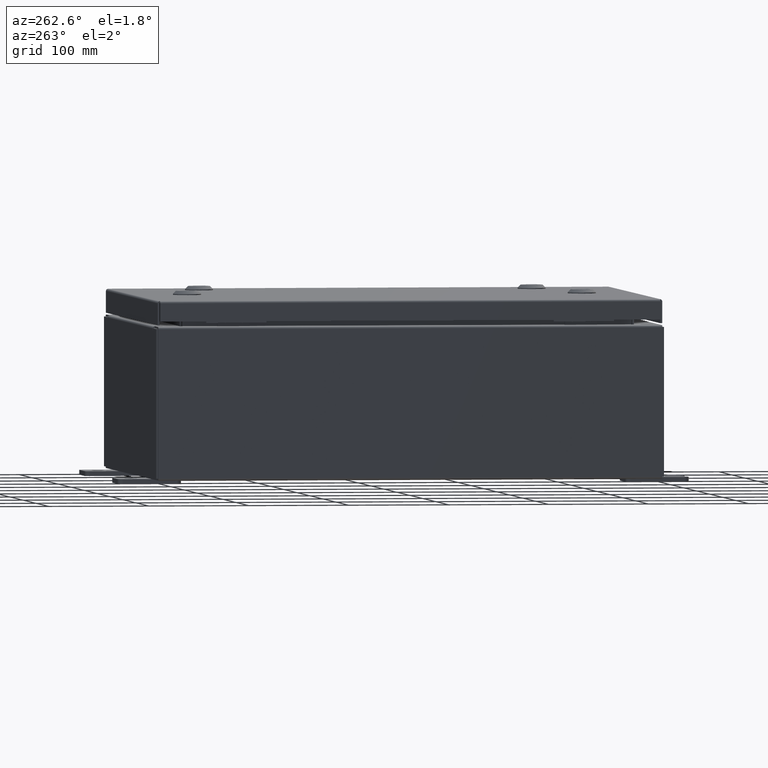
[diagram: clean part render]
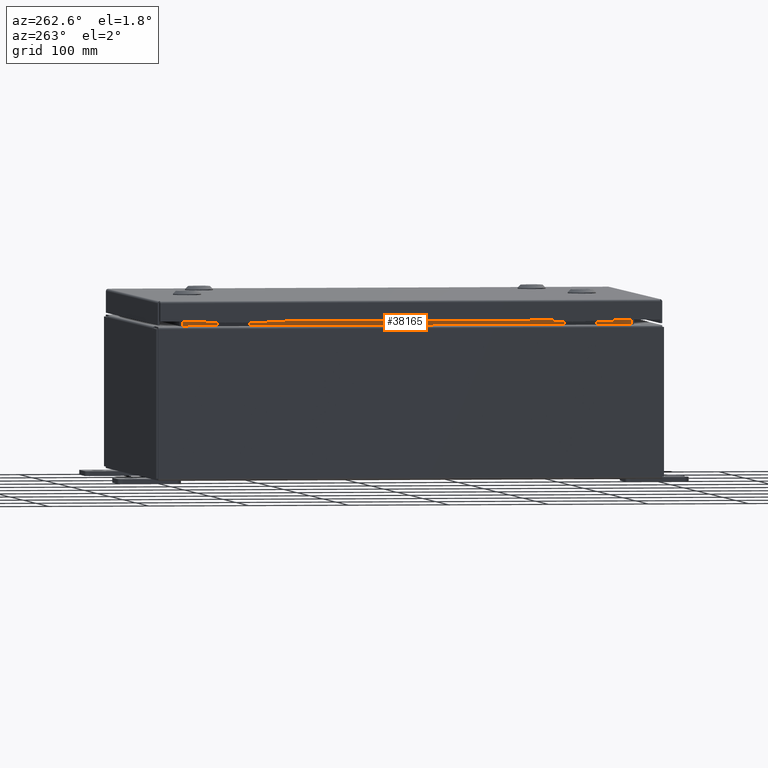
[diagram: same view with one face highlighted and labeled with its STEP entity id]
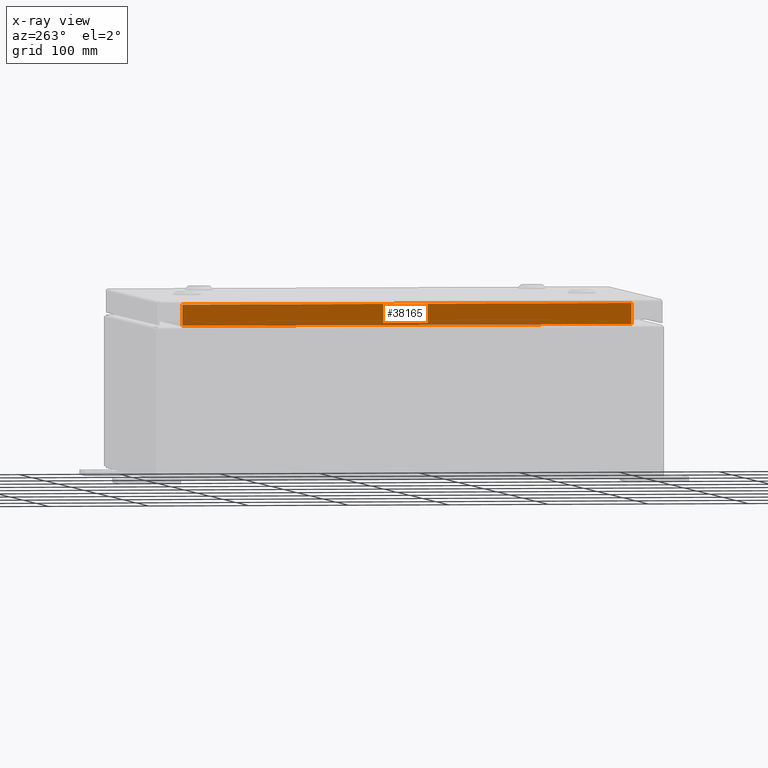
[diagram: x-ray of the same camera — body ghosted, the highlighted face saturated]
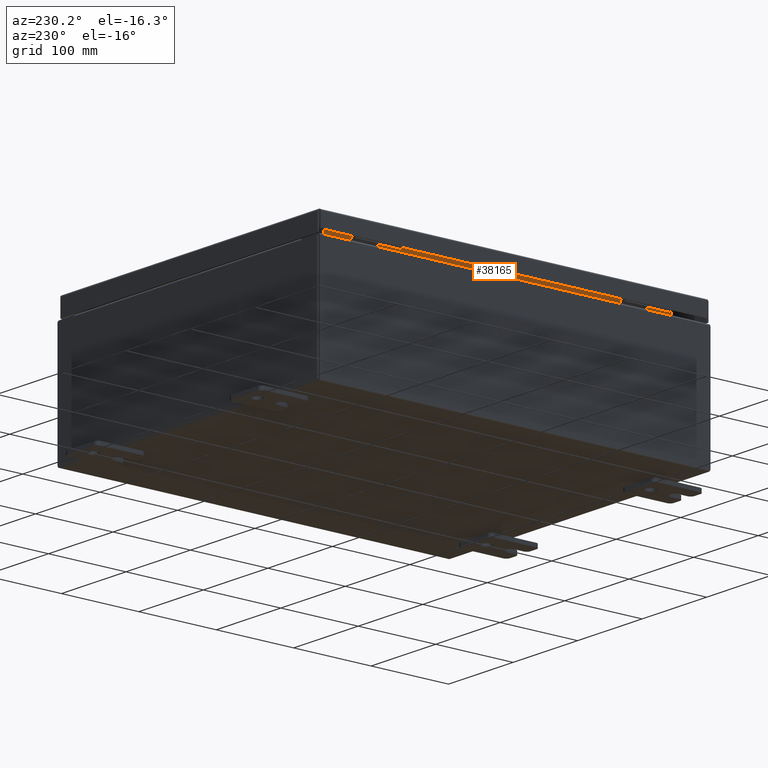
[diagram: same view with one face highlighted and labeled with its STEP entity id]
A machine part, auxiliary view. The second image highlights one B-rep face of the part: STEP entity #38165.
The next image is the same camera in x-ray: the body ghosted, the highlighted face saturated — about 0% of this face is hidden behind the body in this view.
A second angle (auxiliary view) of the same face is appended — the face is thin or edge-on in the first view.
In plain terms, the highlighted planar face has unit normal (-1, 0, -0).
Its self-contained STEP definition (entity closure, byte-faithful):
#286 = CARTESIAN_POINT ( 'NONE',  ( -6.949699999999997300, 0.0000000000000000000, -2.462188349927834600E-014 ) ) ;
#1514 = VERTEX_POINT ( 'NONE', #55757 ) ;
#1768 = EDGE_LOOP ( 'NONE', ( #61339, #9918, #50565, #7653 ) ) ;
#3842 = EDGE_CURVE ( 'NONE', #17278, #1514, #37344, .T. ) ;
#4812 = LINE ( 'NONE', #19574, #17773 ) ;
#7653 = ORIENTED_EDGE ( 'NONE', *, *, #3842, .F. ) ;
#9918 = ORIENTED_EDGE ( 'NONE', *, *, #58138, .F. ) ;
#10016 = PLANE ( 'NONE',  #32274 ) ;
#11015 = VERTEX_POINT ( 'NONE', #37501 ) ;
#11335 = VECTOR ( 'NONE', #55557, 39.37007874015748100 ) ;
#12057 = CARTESIAN_POINT ( 'NONE',  ( -6.949700000000021300, -8.843749999999996400, 6.762900000000005500 ) ) ;
#12693 = FACE_OUTER_BOUND ( 'NONE', #1768, .T. ) ;
#14780 = CARTESIAN_POINT ( 'NONE',  ( -6.949700000000017800, -8.843749999999996400, 5.938300000000007000 ) ) ;
#15078 = DIRECTION ( 'NONE',  ( -1.000000000000000000, 0.0000000000000000000, -3.542869979895298400E-015 ) ) ;
#15909 = EDGE_CURVE ( 'NONE', #1514, #11015, #42536, .T. ) ;
#17278 = VERTEX_POINT ( 'NONE', #39296 ) ;
#17773 = VECTOR ( 'NONE', #48769, 39.37007874015748100 ) ;
#19574 = CARTESIAN_POINT ( 'NONE',  ( -6.949700000000017800, -8.843749999999996400, 5.925300000000007100 ) ) ;
#24196 = DIRECTION ( 'NONE',  ( -6.178030798392683000E-017, 1.000000000000000000, 0.0000000000000000000 ) ) ;
#24311 = VECTOR ( 'NONE', #24196, 39.37007874015748100 ) ;
#24323 = LINE ( 'NONE', #36116, #11335 ) ;
#26141 = EDGE_CURVE ( 'NONE', #44939, #17278, #4812, .T. ) ;
#28017 = VECTOR ( 'NONE', #32244, 39.37007874015748100 ) ;
#32244 = DIRECTION ( 'NONE',  ( -3.542869979895298400E-015, -0.0000000000000000000, 1.000000000000000000 ) ) ;
#32274 = AXIS2_PLACEMENT_3D ( 'NONE', #286, #15078, #49198 ) ;
#32456 = CARTESIAN_POINT ( 'NONE',  ( -6.949700000000021300, 8.843749999999998200, 6.850600000000006200 ) ) ;
#36116 = CARTESIAN_POINT ( 'NONE',  ( -6.949700000000021300, 8.843750000000000000, 6.762900000000005500 ) ) ;
#37344 = LINE ( 'NONE', #14780, #24311 ) ;
#37501 = CARTESIAN_POINT ( 'NONE',  ( -6.949700000000021300, 8.843749999999998200, 6.762900000000005500 ) ) ;
#38165 = ADVANCED_FACE ( 'NONE', ( #12693 ), #10016, .T. ) ;
#39296 = CARTESIAN_POINT ( 'NONE',  ( -6.949700000000017800, -8.843749999999996400, 5.938300000000007000 ) ) ;
#42536 = LINE ( 'NONE', #32456, #28017 ) ;
#44939 = VERTEX_POINT ( 'NONE', #12057 ) ;
#48769 = DIRECTION ( 'NONE',  ( 3.542869979895294000E-015, -0.0000000000000000000, -1.000000000000000000 ) ) ;
#49198 = DIRECTION ( 'NONE',  ( -3.542869979895298400E-015, 0.0000000000000000000, 1.000000000000000000 ) ) ;
#50565 = ORIENTED_EDGE ( 'NONE', *, *, #15909, .F. ) ;
#55557 = DIRECTION ( 'NONE',  ( -0.0000000000000000000, -1.000000000000000000, -0.0000000000000000000 ) ) ;
#55757 = CARTESIAN_POINT ( 'NONE',  ( -6.949700000000017800, 8.843749999999996400, 5.938300000000007000 ) ) ;
#58138 = EDGE_CURVE ( 'NONE', #11015, #44939, #24323, .T. ) ;
#61339 = ORIENTED_EDGE ( 'NONE', *, *, #26141, .F. ) ;